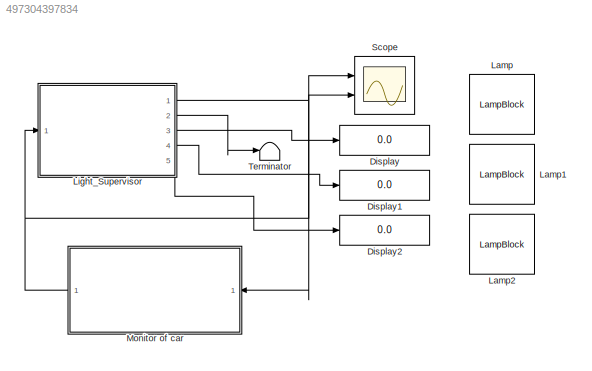
MODEL slx_497304397834
KIND model
CONFIG AbsTol = auto
CONFIG EnableMultiTasking = on
CONFIG FixedStep = .1
CONFIG MaxStep = auto
CONFIG MinStep = auto
CONFIG RelTol = 1e-3
CONFIG SampleTimeConstraint = Unconstrained
CONFIG SolverName = FixedStepDiscrete
CONFIG StartTime = 0.0
CONFIG StopTime = 150
BLOCK [Display] Display
  Decimation = 1
  Ports = [1]
BLOCK [Display] Display1
  Decimation = 1
  Ports = [1]
BLOCK [Display] Display2
  Decimation = 1
  Ports = [1]
BLOCK [LampBlock] Lamp
BLOCK [LampBlock] Lamp1
BLOCK [LampBlock] Lamp2
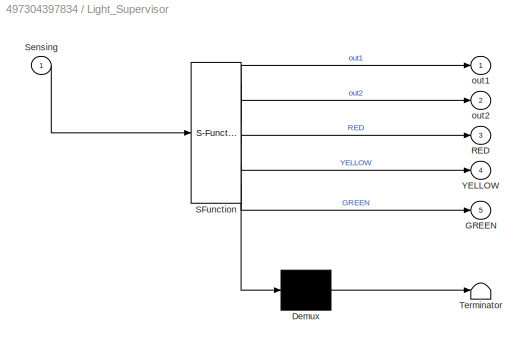
BLOCK [SubSystem] Light_Supervisor
  ErrorFcn = Stateflow.Translate.translate
  PermitHierarchicalResolution = ExplicitOnly
  Ports = [1, 5]
  RequestExecContextInheritance = off
  SFBlockType = Chart
  TreatAsAtomicUnit = on
BLOCK [Demux] Light_Supervisor/ Demux 
  Outputs = 1
  Ports = [1, 1]
BLOCK [S-Function] Light_Supervisor/ SFunction 
  EnableBusSupport = on
  FunctionName = sf_sfun
  PortCounts = [1 6]
  Ports = [1, 6]
  SFcnIsStateOwnerBlock = off
  SFunctionDeploymentMode = off
  Tag = Stateflow S-Function 2
BLOCK [Terminator] Light_Supervisor/ Terminator 
BLOCK [Outport] Light_Supervisor/GREEN
  Port = 5
BLOCK [Outport] Light_Supervisor/RED
  Port = 3
BLOCK [Inport] Light_Supervisor/Sensing
BLOCK [Outport] Light_Supervisor/YELLOW
  Port = 4
BLOCK [Outport] Light_Supervisor/out1
  VectorParamsAs1DForOutWhenUnconnected = off
BLOCK [Outport] Light_Supervisor/out2
  Port = 2
  VectorParamsAs1DForOutWhenUnconnected = off
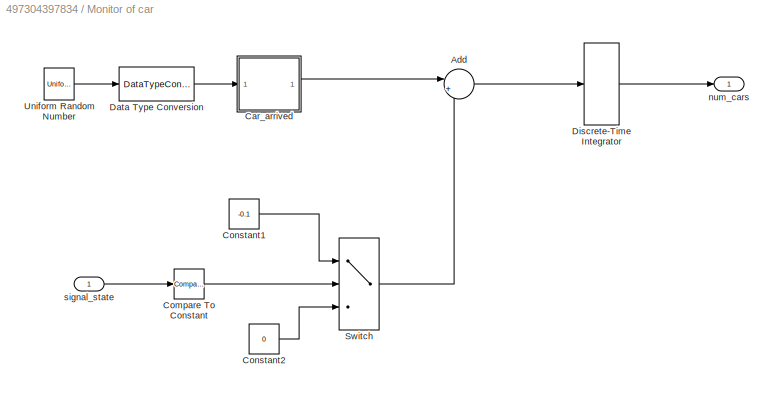
BLOCK [SubSystem] Monitor of car
  Ports = [1, 1]
  RequestExecContextInheritance = off
BLOCK [Sum] Monitor of car/Add
  Inputs = |++
  Ports = [2, 1]
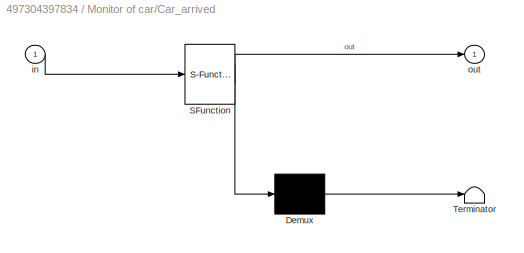
BLOCK [SubSystem] Monitor of car/Car_arrived
  ErrorFcn = Stateflow.Translate.translate
  PermitHierarchicalResolution = ExplicitOnly
  Ports = [1, 1]
  RequestExecContextInheritance = off
  SFBlockType = Chart
  TreatAsAtomicUnit = on
BLOCK [Demux] Monitor of car/Car_arrived/ Demux 
  Outputs = 1
  Ports = [1, 1]
BLOCK [S-Function] Monitor of car/Car_arrived/ SFunction 
  EnableBusSupport = on
  FunctionName = sf_sfun
  PortCounts = [1 2]
  Ports = [1, 2]
  SFcnIsStateOwnerBlock = off
  SFunctionDeploymentMode = off
  Tag = Stateflow S-Function 4
BLOCK [Terminator] Monitor of car/Car_arrived/ Terminator 
BLOCK [Inport] Monitor of car/Car_arrived/in
BLOCK [Outport] Monitor of car/Car_arrived/out
  VectorParamsAs1DForOutWhenUnconnected = off
BLOCK [Reference] Monitor of car/Compare To Constant  REF=simulink/Logic and Bit
Operations/Compare
To Constant
  Ports = [1, 1]
  SourceBlock = simulink/Logic and Bit\nOperations/Compare\nTo Constant
  SourceProductBaseCode = SL
  SourceType = Compare To Constant
BLOCK [Constant] Monitor of car/Constant1
  Value = -0.1
BLOCK [Constant] Monitor of car/Constant2
  Value = 0
BLOCK [DataTypeConversion] Monitor of car/Data Type Conversion
  RndMeth = Floor
  SaturateOnIntegerOverflow = off
BLOCK [DiscreteIntegrator] Monitor of car/Discrete-Time Integrator
  ICPrevOutput = DiscIntNeverNeededParam
  ICPrevScaledInput = DiscIntNeverNeededParam
  LimitOutput = on
  LowerSaturationLimit = 0
  Ports = [1, 1]
  SampleTime = -1
BLOCK [Switch] Monitor of car/Switch
  Criteria = u2 ~= 0
  InputSameDT = off
  SaturateOnIntegerOverflow = off
BLOCK [UniformRandomNumber] Monitor of car/Uniform Random Number
  Maximum = 100
  Minimum = 0
  SampleTime = 0
  Seed = 177836
BLOCK [Outport] Monitor of car/num_cars
  VectorParamsAs1DForOutWhenUnconnected = off
BLOCK [Inport] Monitor of car/signal_state
BLOCK [Scope] Scope
  Floating = off
  NumInputPorts = 2
  Ports = [2]
  ScopeSpecificationString = Simulink.scopes.TimeScopeBlockCfg('CurrentConfiguration', extmgr.ConfigurationSet(extmgr.Configuration('Core','General UI',true),extmgr.Configuration('Core','Source UI',true),extmgr.Configuration('Sources','WiredSimulink',true),extmgr.Configuration('Visuals','Time Domain',true,'SerializedDisplays',{struct('MinYLimReal','0.75','MaxYLimReal','3.25','YLabelReal','','MinYLimMag','0.75','MaxYLimMag','3...<+1973ch>
BLOCK [Terminator] Terminator
NET Light_Supervisor:1 -> Monitor of car:1, Scope:1
LINE Light_Supervisor:2 -> Terminator:1
LINE Light_Supervisor:3 -> Display:1
LINE Light_Supervisor:4 -> Display1:1
LINE Light_Supervisor:5 -> Display2:1
LINE Monitor of car/Add:1 -> Monitor of car/Discrete-Time Integrator:1
LINE Monitor of car/Car_arrived:1 -> Monitor of car/Add:1
LINE Monitor of car/Compare To Constant:1 -> Monitor of car/Switch:2
LINE Monitor of car/Constant1:1 -> Monitor of car/Switch:1
LINE Monitor of car/Constant2:1 -> Monitor of car/Switch:3
LINE Monitor of car/Data Type Conversion:1 -> Monitor of car/Car_arrived:1
LINE Monitor of car/Discrete-Time Integrator:1 -> Monitor of car/num_cars:1
LINE Monitor of car/Switch:1 -> Monitor of car/Add:2
LINE Monitor of car/Uniform Random Number:1 -> Monitor of car/Data Type Conversion:1
LINE Monitor of car/signal_state:1 -> Monitor of car/Compare To Constant:1
NET Monitor of car:1 -> Light_Supervisor:1, Scope:2
note: NET lines group one-source signal fan-out (src -> all destinations, sorted); 1:1 wires keep LINE
CHART Light_Supervisor states=5 transitions=6
  STATE_LABEL 'Stop\nRED=1;\nGREEN=0;\nYELLOW=0;\nout1 = RED;\nout2 = GREEN;'
  STATE_LABEL 'StopToGo\nRED=1;\nGREEN=0;\nYELLOW=0;\nout1 = RED;\nout2 = YELLOW;'
  STATE_LABEL 'StopForTraffic\nRED=1;\nGREEN=0;\nYELLOW=0;\nout1 = RED;\nout2 = GREEN;'
  STATE_LABEL 'GoToStop\nout1 = YELLOW;\nout2 = RED;\nRED=0;\nGREEN=0;\nYELLOW=1;'
  STATE_LABEL 'Go\nout1 = GREEN;\nout2 = RED;\nRED=0;\nGREEN=1;\nYELLOW=0;'
CHART Monitor of car/Car_arrived states=0 transitions=1
CHART  states=0 transitions=0
CHART  states=0 transitions=0
